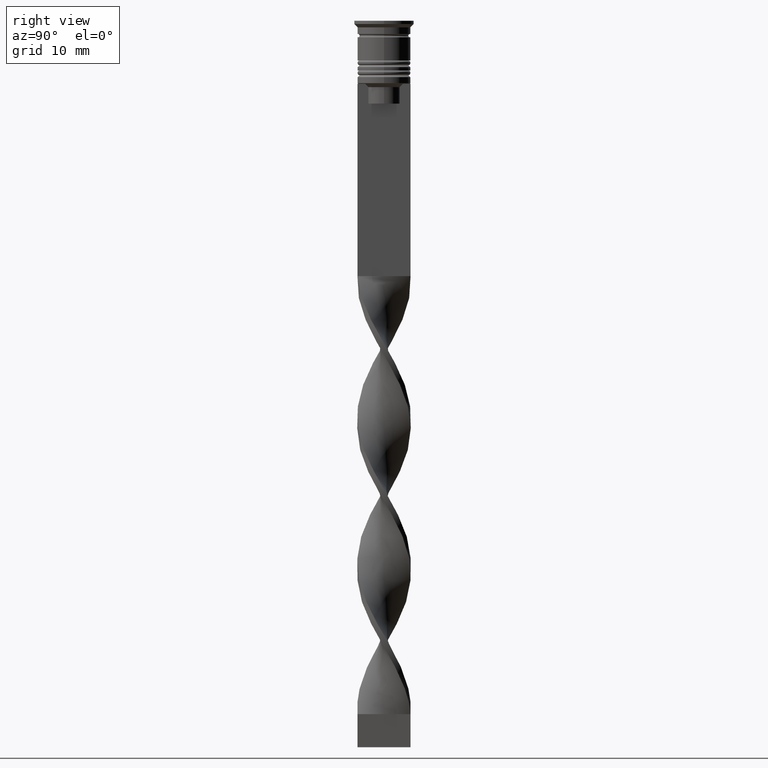
[diagram: clean part render]
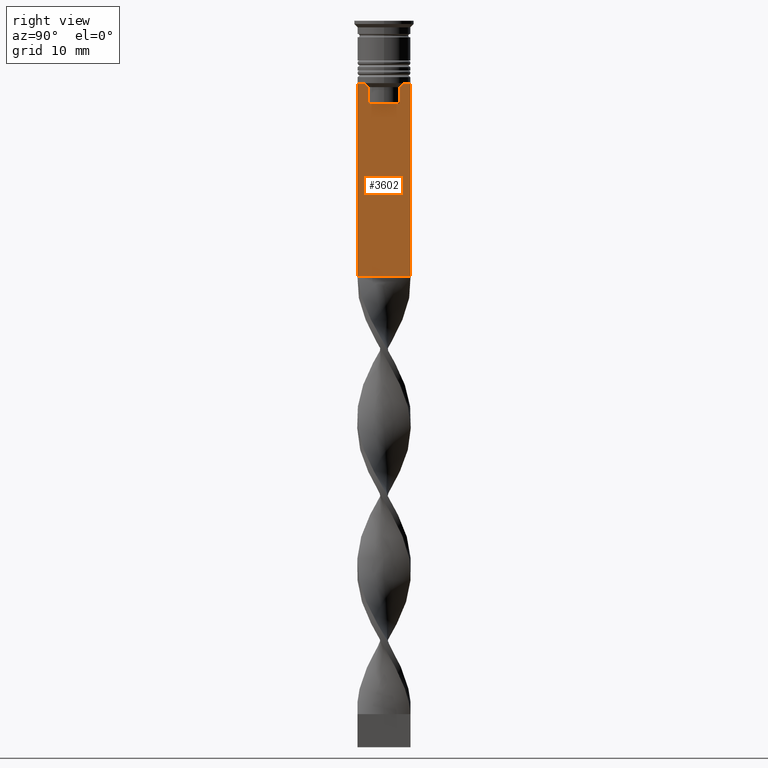
[diagram: same view with one face highlighted and labeled with its STEP entity id]
A machine part, right view. The second image highlights one B-rep face of the part: STEP entity #3602.
In plain terms, the highlighted planar face has unit normal (-1, 0, 0).
Its self-contained STEP definition (entity closure, byte-faithful):
#8 = DIRECTION ( 'NONE',  ( 0.000000000000000000, -1.000000000000000000, 0.000000000000000000 ) ) ;
#46 = DIRECTION ( 'NONE',  ( 0.000000000000000000, -1.000000000000000000, 0.000000000000000000 ) ) ;
#218 = CARTESIAN_POINT ( 'NONE',  ( 0.5000000000000000000, 4.000000000000000000, -1.437742251701450202 ) ) ;
#241 = CARTESIAN_POINT ( 'NONE',  ( 0.5000000000000000000, -4.000000000000000000, -9.500000000000000000 ) ) ;
#286 = CARTESIAN_POINT ( 'NONE',  ( 0.5000000000000000000, 2.399999999999996803, -12.50000000000000000 ) ) ;
#290 = ORIENTED_EDGE ( 'NONE', *, *, #1841, .T. ) ;
#335 = LINE ( 'NONE', #898, #1433 ) ;
#337 = VECTOR ( 'NONE', #1103, 1000.000000000000000 ) ;
#414 = LINE ( 'NONE', #2074, #2043 ) ;
#435 = EDGE_CURVE ( 'NONE', #1683, #2602, #335, .T. ) ;
#477 = EDGE_CURVE ( 'NONE', #3007, #2602, #1094, .T. ) ;
#508 = ORIENTED_EDGE ( 'NONE', *, *, #2011, .T. ) ;
#550 = DIRECTION ( 'NONE',  ( 0.000000000000000000, -1.000000000000000000, 0.000000000000000000 ) ) ;
#609 = CARTESIAN_POINT ( 'NONE',  ( 0.5000000000000000000, -2.347338918861097135, -10.00000000000000000 ) ) ;
#618 = CARTESIAN_POINT ( 'NONE',  ( 0.5000000000000000000, -2.856571371417138572, -9.500000000000000000 ) ) ;
#679 = CARTESIAN_POINT ( 'NONE',  ( 0.5000000000000000000, -4.000000000000000000, -1.437742251701450202 ) ) ;
#687 = CARTESIAN_POINT ( 'NONE',  ( 0.5000000000000000000, 2.347338918861097135, -10.00000000000000000 ) ) ;
#701 = DIRECTION ( 'NONE',  ( -1.000000000000000000, 0.000000000000000000, 0.000000000000000000 ) ) ;
#714 = CARTESIAN_POINT ( 'NONE',  ( 0.5000000000000000000, -2.856571371417138572, -9.500000000000000000 ) ) ;
#716 = ORIENTED_EDGE ( 'NONE', *, *, #477, .F. ) ;
#731 = VECTOR ( 'NONE', #3588, 1000.000000000000000 ) ;
#748 = EDGE_CURVE ( 'NONE', #3007, #1264, #3146, .T. ) ;
#761 = CARTESIAN_POINT ( 'NONE',  ( 0.5000000000000000000, -4.000000000000000000, -9.500000000000000000 ) ) ;
#849 = EDGE_CURVE ( 'NONE', #1650, #1916, #1128, .T. ) ;
#865 = CARTESIAN_POINT ( 'NONE',  ( 0.5000000000000000000, -4.000000000000000000, -9.500000000000000000 ) ) ;
#889 = LINE ( 'NONE', #286, #1204 ) ;
#898 = CARTESIAN_POINT ( 'NONE',  ( 0.5000000000000000000, -4.000000000000000000, -38.50000000000000000 ) ) ;
#901 = EDGE_CURVE ( 'NONE', #1916, #3406, #889, .T. ) ;
#914 = ORIENTED_EDGE ( 'NONE', *, *, #3580, .T. ) ;
#941 = CARTESIAN_POINT ( 'NONE',  ( 0.5000000000000000000, 2.517407211010872281, -9.833663366238582171 ) ) ;
#1094 = LINE ( 'NONE', #218, #731 ) ;
#1102 = ORIENTED_EDGE ( 'NONE', *, *, #1242, .T. ) ;
#1103 = DIRECTION ( 'NONE',  ( 0.000000000000000000, -1.000000000000000000, 0.000000000000000000 ) ) ;
#1128 = LINE ( 'NONE', #3420, #3218 ) ;
#1130 = ORIENTED_EDGE ( 'NONE', *, *, #748, .T. ) ;
#1174 = EDGE_CURVE ( 'NONE', #2195, #2873, #1492, .T. ) ;
#1204 = VECTOR ( 'NONE', #46, 1000.000000000000000 ) ;
#1226 = CARTESIAN_POINT ( 'NONE',  ( 0.5000000000000000000, -2.347338918861097135, -10.00000000000000000 ) ) ;
#1242 = EDGE_CURVE ( 'NONE', #1256, #1683, #1862, .T. ) ;
#1255 = DIRECTION ( 'NONE',  ( -0.000000000000000000, -0.000000000000000000, 1.000000000000000000 ) ) ;
#1256 = VERTEX_POINT ( 'NONE', #761 ) ;
#1264 = VERTEX_POINT ( 'NONE', #2984 ) ;
#1310 = ORIENTED_EDGE ( 'NONE', *, *, #1174, .T. ) ;
#1337 = CARTESIAN_POINT ( 'NONE',  ( 0.5000000000000000000, -2.347338918861097135, -12.50000000000000000 ) ) ;
#1346 = CARTESIAN_POINT ( 'NONE',  ( 0.5000000000000000000, 4.000000000000000000, -38.50000000000000000 ) ) ;
#1423 = ORIENTED_EDGE ( 'NONE', *, *, #849, .T. ) ;
#1433 = VECTOR ( 'NONE', #2031, 1000.000000000000000 ) ;
#1492 = B_SPLINE_CURVE_WITH_KNOTS ( 'NONE', 3,
 ( #1226, #2651, #2628, #714 ),
 .UNSPECIFIED., .F., .F.,
 ( 4, 4 ),
 ( 0.01178336557230038467, 0.01249758354768160280 ),
 .UNSPECIFIED. ) ;
#1585 = ORIENTED_EDGE ( 'NONE', *, *, #435, .T. ) ;
#1607 = VECTOR ( 'NONE', #2541, 1000.000000000000000 ) ;
#1631 = LINE ( 'NONE', #3075, #3518 ) ;
#1638 = DIRECTION ( 'NONE',  ( 0.000000000000000000, 0.000000000000000000, -1.000000000000000000 ) ) ;
#1650 = VERTEX_POINT ( 'NONE', #2573 ) ;
#1683 = VERTEX_POINT ( 'NONE', #3426 ) ;
#1820 = CARTESIAN_POINT ( 'NONE',  ( 0.5000000000000000000, 2.856571371417138572, -9.500000000000000000 ) ) ;
#1841 = EDGE_CURVE ( 'NONE', #2124, #1650, #2241, .T. ) ;
#1862 = LINE ( 'NONE', #2165, #3514 ) ;
#1891 = EDGE_CURVE ( 'NONE', #3406, #2195, #414, .T. ) ;
#1916 = VERTEX_POINT ( 'NONE', #3532 ) ;
#1989 = FACE_OUTER_BOUND ( 'NONE', #2006, .T. ) ;
#2006 = EDGE_LOOP ( 'NONE', ( #914, #290, #1423, #2774, #2193, #1310, #508, #2338, #1102, #1585, #716, #1130 ) ) ;
#2011 = EDGE_CURVE ( 'NONE', #2873, #3523, #1631, .T. ) ;
#2031 = DIRECTION ( 'NONE',  ( 0.000000000000000000, 1.000000000000000000, 0.000000000000000000 ) ) ;
#2043 = VECTOR ( 'NONE', #1255, 1000.000000000000000 ) ;
#2074 = CARTESIAN_POINT ( 'NONE',  ( 0.5000000000000000000, -2.347338918861097135, 0.000000000000000000 ) ) ;
#2114 = AXIS2_PLACEMENT_3D ( 'NONE', #679, #701, #2633 ) ;
#2124 = VERTEX_POINT ( 'NONE', #2191 ) ;
#2165 = CARTESIAN_POINT ( 'NONE',  ( 0.5000000000000000000, -4.000000000000000000, -1.437742251701450202 ) ) ;
#2191 = CARTESIAN_POINT ( 'NONE',  ( 0.5000000000000000000, 2.856571371417138572, -9.500000000000000000 ) ) ;
#2193 = ORIENTED_EDGE ( 'NONE', *, *, #1891, .T. ) ;
#2195 = VERTEX_POINT ( 'NONE', #609 ) ;
#2241 = B_SPLINE_CURVE_WITH_KNOTS ( 'NONE', 3,
 ( #1820, #3217, #941, #687 ),
 .UNSPECIFIED., .F., .F.,
 ( 4, 4 ),
 ( 0.004956812174141191595, 0.005670477137898149653 ),
 .UNSPECIFIED. ) ;
#2338 = ORIENTED_EDGE ( 'NONE', *, *, #3165, .T. ) ;
#2388 = PLANE ( 'NONE',  #2114 ) ;
#2423 = CARTESIAN_POINT ( 'NONE',  ( 0.5000000000000000000, 4.000000000000000000, -9.500000000000000000 ) ) ;
#2536 = CARTESIAN_POINT ( 'NONE',  ( 0.5000000000000000000, -3.867815921162741422, -9.500000000000000000 ) ) ;
#2541 = DIRECTION ( 'NONE',  ( 0.000000000000000000, -1.000000000000000000, 0.000000000000000000 ) ) ;
#2552 = CARTESIAN_POINT ( 'NONE',  ( 0.5000000000000000000, -4.000000000000000000, -9.500000000000000000 ) ) ;
#2573 = CARTESIAN_POINT ( 'NONE',  ( 0.5000000000000000000, 2.347338918861097135, -10.00000000000000000 ) ) ;
#2602 = VERTEX_POINT ( 'NONE', #1346 ) ;
#2628 = CARTESIAN_POINT ( 'NONE',  ( 0.5000000000000000000, -2.687095498514037839, -9.666937905752043037 ) ) ;
#2633 = DIRECTION ( 'NONE',  ( 0.000000000000000000, 0.000000000000000000, 1.000000000000000000 ) ) ;
#2651 = CARTESIAN_POINT ( 'NONE',  ( 0.5000000000000000000, -2.517408374291112416, -9.833662228483172285 ) ) ;
#2774 = ORIENTED_EDGE ( 'NONE', *, *, #901, .T. ) ;
#2873 = VERTEX_POINT ( 'NONE', #618 ) ;
#2984 = CARTESIAN_POINT ( 'NONE',  ( 0.5000000000000000000, 3.867815921162741422, -9.500000000000000000 ) ) ;
#3007 = VERTEX_POINT ( 'NONE', #2423 ) ;
#3075 = CARTESIAN_POINT ( 'NONE',  ( 0.5000000000000000000, -4.000000000000000000, -9.500000000000000000 ) ) ;
#3087 = DIRECTION ( 'NONE',  ( 0.000000000000000000, 0.000000000000000000, -1.000000000000000000 ) ) ;
#3146 = LINE ( 'NONE', #865, #1607 ) ;
#3165 = EDGE_CURVE ( 'NONE', #3523, #1256, #3350, .T. ) ;
#3217 = CARTESIAN_POINT ( 'NONE',  ( 0.5000000000000000000, 2.687094542495898075, -9.666938847453439010 ) ) ;
#3218 = VECTOR ( 'NONE', #3087, 1000.000000000000000 ) ;
#3350 = LINE ( 'NONE', #241, #337 ) ;
#3387 = LINE ( 'NONE', #2552, #3635 ) ;
#3406 = VERTEX_POINT ( 'NONE', #1337 ) ;
#3420 = CARTESIAN_POINT ( 'NONE',  ( 0.5000000000000000000, 2.347338918861097135, 0.000000000000000000 ) ) ;
#3426 = CARTESIAN_POINT ( 'NONE',  ( 0.5000000000000000000, -4.000000000000000000, -38.50000000000000000 ) ) ;
#3514 = VECTOR ( 'NONE', #1638, 1000.000000000000000 ) ;
#3518 = VECTOR ( 'NONE', #550, 1000.000000000000000 ) ;
#3523 = VERTEX_POINT ( 'NONE', #2536 ) ;
#3532 = CARTESIAN_POINT ( 'NONE',  ( 0.5000000000000000000, 2.347338918861097135, -12.50000000000000000 ) ) ;
#3580 = EDGE_CURVE ( 'NONE', #1264, #2124, #3387, .T. ) ;
#3588 = DIRECTION ( 'NONE',  ( 0.000000000000000000, 0.000000000000000000, -1.000000000000000000 ) ) ;
#3602 = ADVANCED_FACE ( 'NONE', ( #1989 ), #2388, .F. ) ;
#3635 = VECTOR ( 'NONE', #8, 1000.000000000000000 ) ;